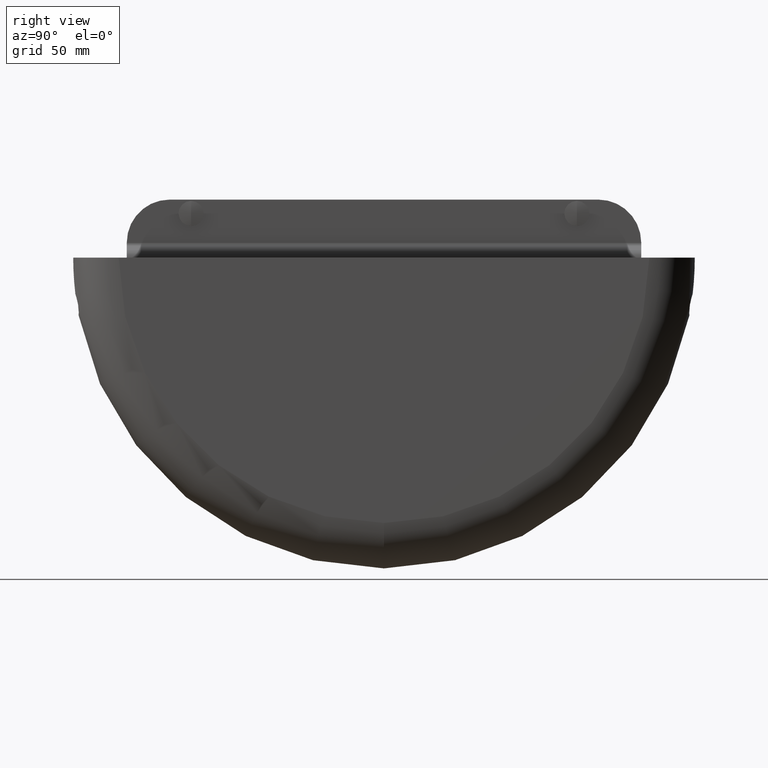
[diagram: clean part render]
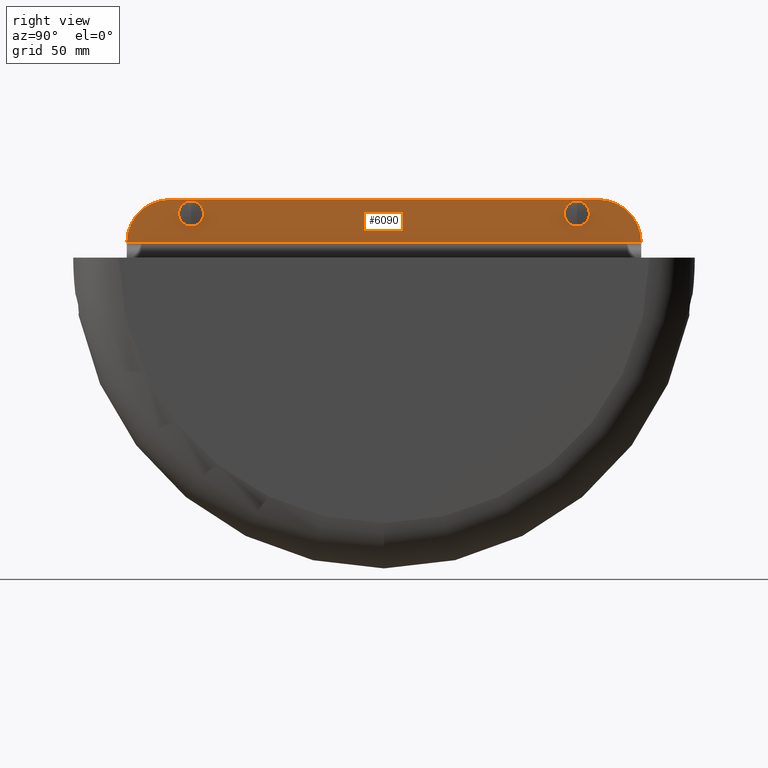
[diagram: same view with one face highlighted and labeled with its STEP entity id]
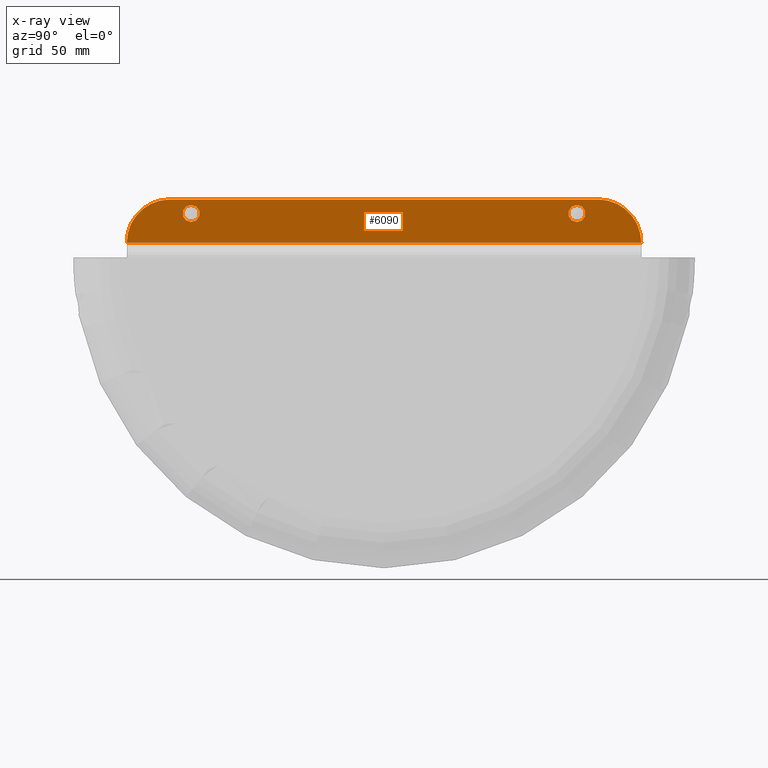
[diagram: x-ray of the same camera — body ghosted, the highlighted face saturated]
A machine part, right view. The second image highlights one B-rep face of the part: STEP entity #6090.
The next image is the same camera in x-ray: the body ghosted, the highlighted face saturated — about 0% of this face is hidden behind the body in this view.
In plain terms, the highlighted planar face has unit normal (-1, 0, -0).
Its self-contained STEP definition (entity closure, byte-faithful):
#325 = VECTOR ( 'NONE', #6635, 1000.000000000000000 ) ;
#643 = VERTEX_POINT ( 'NONE', #15715 ) ;
#663 = LINE ( 'NONE', #10991, #6139 ) ;
#1156 = PLANE ( 'NONE',  #4183 ) ;
#1157 = CARTESIAN_POINT ( 'NONE',  ( -25.19999999999998863, 120.0000000000000000, 6.899494936611650253 ) ) ;
#1210 = DIRECTION ( 'NONE',  ( -0.000000000000000000, -1.000000000000000000, -0.000000000000000000 ) ) ;
#1265 = AXIS2_PLACEMENT_3D ( 'NONE', #10554, #1754, #9289 ) ;
#1699 = DIRECTION ( 'NONE',  ( 1.719968479111451431E-16, -0.000000000000000000, -1.000000000000000000 ) ) ;
#1754 = DIRECTION ( 'NONE',  ( 1.000000000000000000, -0.000000000000000000, 1.719968479111451678E-16 ) ) ;
#1868 = CARTESIAN_POINT ( 'NONE',  ( -25.19999999999999218, -90.00000000000000000, 16.57106781186548261 ) ) ;
#2336 = ORIENTED_EDGE ( 'NONE', *, *, #12006, .F. ) ;
#2515 = AXIS2_PLACEMENT_3D ( 'NONE', #3398, #4264, #4705 ) ;
#2637 = CIRCLE ( 'NONE', #6765, 20.00000000000000000 ) ;
#2683 = ORIENTED_EDGE ( 'NONE', *, *, #11321, .F. ) ;
#2992 = FACE_BOUND ( 'NONE', #14244, .T. ) ;
#3214 = EDGE_LOOP ( 'NONE', ( #3797, #2683 ) ) ;
#3368 = DIRECTION ( 'NONE',  ( 1.000000000000000000, 0.000000000000000000, 1.719968479111451678E-16 ) ) ;
#3398 = CARTESIAN_POINT ( 'NONE',  ( -25.19999999999999218, -90.00000000000000000, 20.57106781186548261 ) ) ;
#3469 = EDGE_CURVE ( 'NONE', #3492, #12081, #2637, .T. ) ;
#3492 = VERTEX_POINT ( 'NONE', #13076 ) ;
#3542 = CARTESIAN_POINT ( 'NONE',  ( -25.19999999999999218, -90.00000000000000000, 24.57106781186548261 ) ) ;
#3797 = ORIENTED_EDGE ( 'NONE', *, *, #5353, .F. ) ;
#4183 = AXIS2_PLACEMENT_3D ( 'NONE', #5153, #13674, #8744 ) ;
#4264 = DIRECTION ( 'NONE',  ( 1.000000000000000000, 0.000000000000000000, 1.719968479111451678E-16 ) ) ;
#4315 = ORIENTED_EDGE ( 'NONE', *, *, #14035, .T. ) ;
#4705 = DIRECTION ( 'NONE',  ( 0.000000000000000000, 0.000000000000000000, -1.000000000000000000 ) ) ;
#4720 = VERTEX_POINT ( 'NONE', #5092 ) ;
#4772 = LINE ( 'NONE', #10332, #8070 ) ;
#4893 = VERTEX_POINT ( 'NONE', #3542 ) ;
#5092 = CARTESIAN_POINT ( 'NONE',  ( -25.19999999999998863, 120.0000000000000000, 7.071067811865481723 ) ) ;
#5153 = CARTESIAN_POINT ( 'NONE',  ( -25.19999999999998863, 120.0000000000000000, 6.899494936611650253 ) ) ;
#5159 = ORIENTED_EDGE ( 'NONE', *, *, #10083, .T. ) ;
#5353 = EDGE_CURVE ( 'NONE', #16005, #643, #14704, .T. ) ;
#5661 = EDGE_CURVE ( 'NONE', #4720, #9555, #4772, .T. ) ;
#5988 = CIRCLE ( 'NONE', #14848, 4.000000000000000000 ) ;
#6023 = EDGE_CURVE ( 'NONE', #12081, #7248, #663, .T. ) ;
#6090 = ADVANCED_FACE ( 'NONE', ( #12385, #2992, #9837 ), #1156, .F. ) ;
#6139 = VECTOR ( 'NONE', #9838, 1000.000000000000000 ) ;
#6265 = AXIS2_PLACEMENT_3D ( 'NONE', #13516, #7291, #12313 ) ;
#6635 = DIRECTION ( 'NONE',  ( -0.000000000000000000, -1.000000000000000000, -0.000000000000000000 ) ) ;
#6765 = AXIS2_PLACEMENT_3D ( 'NONE', #9403, #14225, #9244 ) ;
#6921 = CARTESIAN_POINT ( 'NONE',  ( -25.19999999999999218, 90.00000000000000000, 20.57106781186550393 ) ) ;
#7248 = VERTEX_POINT ( 'NONE', #13132 ) ;
#7291 = DIRECTION ( 'NONE',  ( 1.000000000000000000, 0.000000000000000000, 1.719968479111451678E-16 ) ) ;
#7496 = ORIENTED_EDGE ( 'NONE', *, *, #5661, .F. ) ;
#8070 = VECTOR ( 'NONE', #1699, 1000.000000000000000 ) ;
#8121 = ORIENTED_EDGE ( 'NONE', *, *, #3469, .T. ) ;
#8376 = EDGE_CURVE ( 'NONE', #4893, #11750, #13856, .T. ) ;
#8744 = DIRECTION ( 'NONE',  ( -1.719968479111451678E-16, 0.000000000000000000, 1.000000000000000000 ) ) ;
#9002 = CARTESIAN_POINT ( 'NONE',  ( -25.19999999999998863, -120.0000000000000000, 7.071067811865481723 ) ) ;
#9244 = DIRECTION ( 'NONE',  ( -1.734723475976807094E-16, 0.000000000000000000, 1.000000000000000000 ) ) ;
#9289 = DIRECTION ( 'NONE',  ( -1.734723475976807094E-16, 0.000000000000000000, 1.000000000000000000 ) ) ;
#9403 = CARTESIAN_POINT ( 'NONE',  ( -25.19999999999998863, -99.99999999999997158, 7.071067811865481723 ) ) ;
#9555 = VERTEX_POINT ( 'NONE', #12929 ) ;
#9701 = LINE ( 'NONE', #11555, #325 ) ;
#9794 = ORIENTED_EDGE ( 'NONE', *, *, #8376, .F. ) ;
#9837 = FACE_OUTER_BOUND ( 'NONE', #10688, .T. ) ;
#9838 = DIRECTION ( 'NONE',  ( 1.719968479111451431E-16, -0.000000000000000000, -1.000000000000000000 ) ) ;
#10074 = VECTOR ( 'NONE', #1210, 1000.000000000000000 ) ;
#10083 = EDGE_CURVE ( 'NONE', #15067, #3492, #9701, .T. ) ;
#10181 = DIRECTION ( 'NONE',  ( 0.000000000000000000, 0.000000000000000000, -1.000000000000000000 ) ) ;
#10284 = CIRCLE ( 'NONE', #2515, 4.000000000000000000 ) ;
#10332 = CARTESIAN_POINT ( 'NONE',  ( -25.19999999999998863, 120.0000000000000000, 6.899494936611650253 ) ) ;
#10538 = EDGE_CURVE ( 'NONE', #11750, #4893, #10284, .T. ) ;
#10554 = CARTESIAN_POINT ( 'NONE',  ( -25.19999999999998863, 99.99999999999998579, 7.071067811865481723 ) ) ;
#10688 = EDGE_LOOP ( 'NONE', ( #7496, #4315, #5159, #8121, #11290, #2336 ) ) ;
#10991 = CARTESIAN_POINT ( 'NONE',  ( -25.19999999999998863, -120.0000000000000000, 6.899494936611650253 ) ) ;
#11290 = ORIENTED_EDGE ( 'NONE', *, *, #6023, .T. ) ;
#11321 = EDGE_CURVE ( 'NONE', #643, #16005, #5988, .T. ) ;
#11555 = CARTESIAN_POINT ( 'NONE',  ( -25.19999999999999218, 120.0000000000000000, 27.07106781186548261 ) ) ;
#11620 = CARTESIAN_POINT ( 'NONE',  ( -25.19999999999999218, 90.00000000000000000, 16.57106781186550393 ) ) ;
#11750 = VERTEX_POINT ( 'NONE', #1868 ) ;
#11752 = ORIENTED_EDGE ( 'NONE', *, *, #10538, .F. ) ;
#11985 = CIRCLE ( 'NONE', #1265, 20.00000000000000000 ) ;
#12006 = EDGE_CURVE ( 'NONE', #9555, #7248, #13393, .T. ) ;
#12081 = VERTEX_POINT ( 'NONE', #9002 ) ;
#12313 = DIRECTION ( 'NONE',  ( 0.000000000000000000, 0.000000000000000000, -1.000000000000000000 ) ) ;
#12385 = FACE_BOUND ( 'NONE', #3214, .T. ) ;
#12706 = CARTESIAN_POINT ( 'NONE',  ( -25.19999999999999218, -90.00000000000000000, 20.57106781186548261 ) ) ;
#12929 = CARTESIAN_POINT ( 'NONE',  ( -25.19999999999998863, 120.0000000000000000, 6.899494936611650253 ) ) ;
#13076 = CARTESIAN_POINT ( 'NONE',  ( -25.19999999999999218, -99.99999999999997158, 27.07106781186548261 ) ) ;
#13132 = CARTESIAN_POINT ( 'NONE',  ( -25.19999999999998863, -120.0000000000000000, 6.899494936611650253 ) ) ;
#13393 = LINE ( 'NONE', #1157, #10074 ) ;
#13516 = CARTESIAN_POINT ( 'NONE',  ( -25.19999999999999218, 90.00000000000000000, 20.57106781186550393 ) ) ;
#13519 = DIRECTION ( 'NONE',  ( 0.000000000000000000, 0.000000000000000000, -1.000000000000000000 ) ) ;
#13674 = DIRECTION ( 'NONE',  ( -1.000000000000000000, 0.000000000000000000, -1.719968479111451678E-16 ) ) ;
#13694 = AXIS2_PLACEMENT_3D ( 'NONE', #12706, #13860, #10181 ) ;
#13856 = CIRCLE ( 'NONE', #13694, 4.000000000000000000 ) ;
#13860 = DIRECTION ( 'NONE',  ( 1.000000000000000000, 0.000000000000000000, 1.719968479111451678E-16 ) ) ;
#14035 = EDGE_CURVE ( 'NONE', #4720, #15067, #11985, .T. ) ;
#14225 = DIRECTION ( 'NONE',  ( 1.000000000000000000, -0.000000000000000000, 1.719968479111451678E-16 ) ) ;
#14244 = EDGE_LOOP ( 'NONE', ( #11752, #9794 ) ) ;
#14704 = CIRCLE ( 'NONE', #6265, 4.000000000000000000 ) ;
#14848 = AXIS2_PLACEMENT_3D ( 'NONE', #6921, #3368, #13519 ) ;
#15067 = VERTEX_POINT ( 'NONE', #15325 ) ;
#15325 = CARTESIAN_POINT ( 'NONE',  ( -25.19999999999999218, 99.99999999999998579, 27.07106781186548261 ) ) ;
#15715 = CARTESIAN_POINT ( 'NONE',  ( -25.19999999999999218, 90.00000000000000000, 24.57106781186550393 ) ) ;
#16005 = VERTEX_POINT ( 'NONE', #11620 ) ;